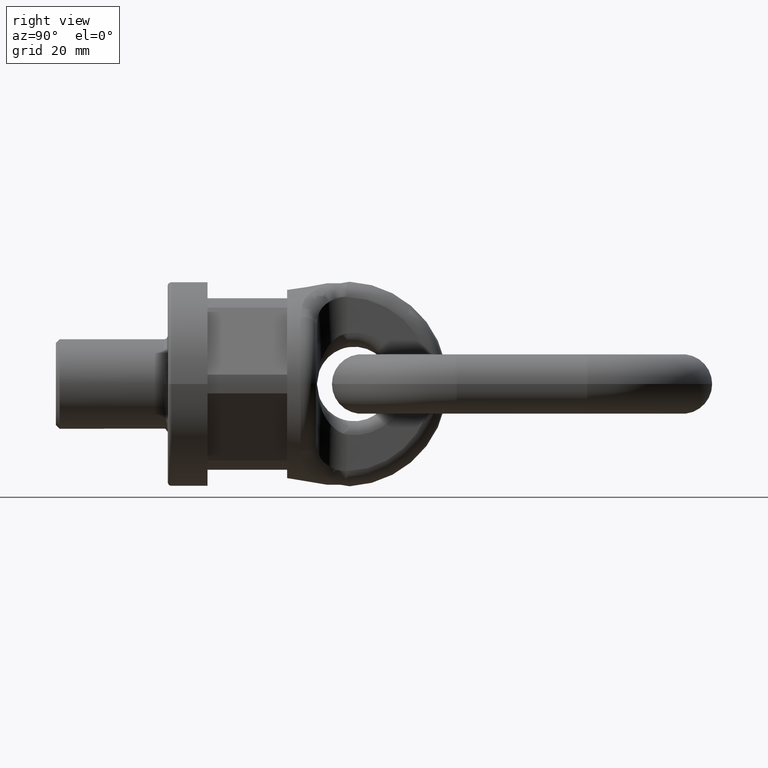
[diagram: clean part render]
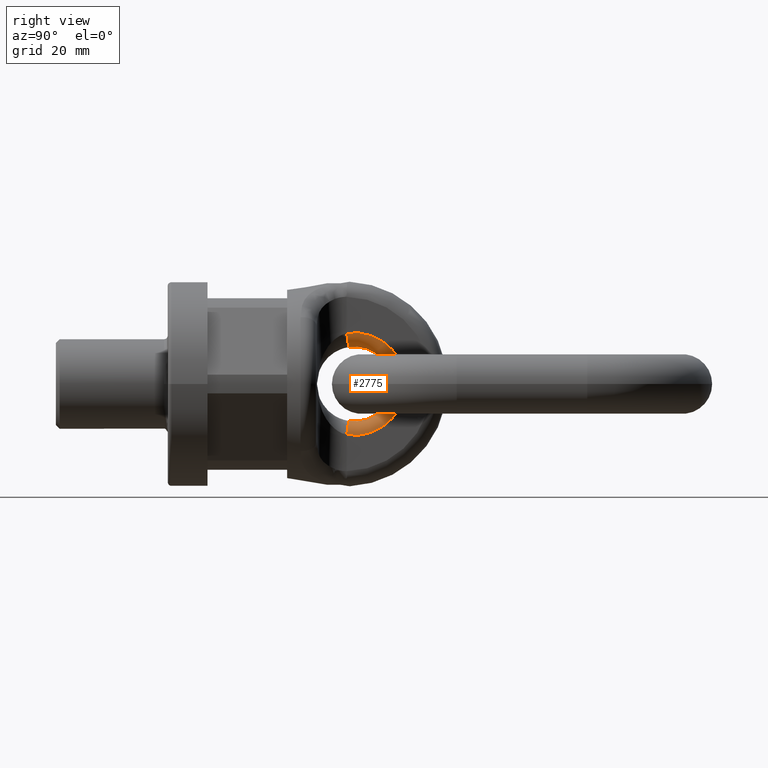
[diagram: same view with one face highlighted and labeled with its STEP entity id]
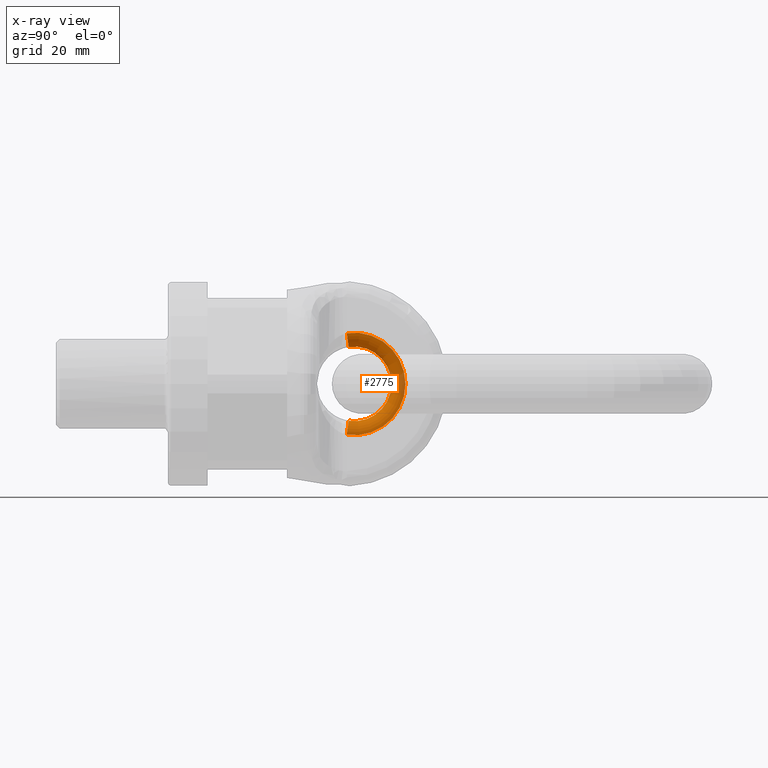
[diagram: x-ray of the same camera — body ghosted, the highlighted face saturated]
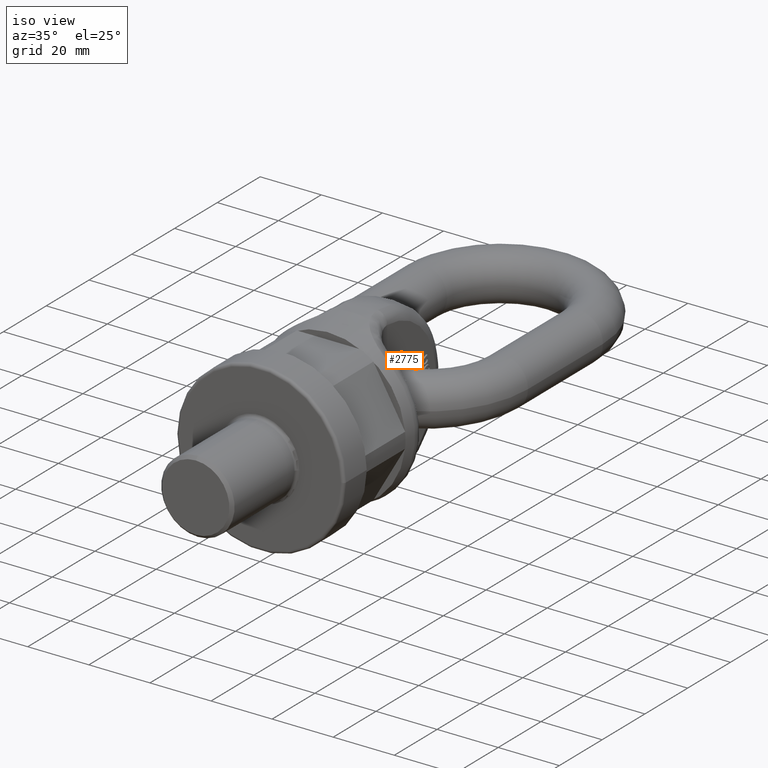
[diagram: same view with one face highlighted and labeled with its STEP entity id]
A machine part, right view. The second image highlights one B-rep face of the part: STEP entity #2775.
The next image is the same camera in x-ray: the body ghosted, the highlighted face saturated — about 14% of this face is hidden behind the body in this view.
A second angle (iso view) of the same face is appended — the face is thin or edge-on in the first view.
In plain terms, the highlighted toroidal blend (fillet) surface has major radius 13.75 mm and minor (blend) radius 3.75 mm.
Its self-contained STEP definition (entity closure, byte-faithful):
#1800=TOROIDAL_SURFACE('',#5728,13.75,3.75);
#1919=FACE_OUTER_BOUND('',#3219,.T.);
#2775=ADVANCED_FACE('',(#1919),#1800,.T.);
#3219=EDGE_LOOP('',(#3991,#3992,#3993,#3994));
#3991=ORIENTED_EDGE('',*,*,#5267,.T.);
#3992=ORIENTED_EDGE('',*,*,#5009,.F.);
#3993=ORIENTED_EDGE('',*,*,#5268,.F.);
#3994=ORIENTED_EDGE('',*,*,#5082,.F.);
#4599=VERTEX_POINT('',#6790);
#4600=VERTEX_POINT('',#6792);
#4666=VERTEX_POINT('',#7080);
#4667=VERTEX_POINT('',#7081);
#5009=EDGE_CURVE('',#4599,#4600,#5559,.T.);
#5082=EDGE_CURVE('',#4666,#4667,#5569,.T.);
#5267=EDGE_CURVE('',#4666,#4600,#5580,.T.);
#5268=EDGE_CURVE('',#4667,#4599,#5581,.T.);
#5559=CIRCLE('',#5647,13.75);
#5569=CIRCLE('',#5664,10.);
#5580=CIRCLE('',#5726,3.75);
#5581=CIRCLE('',#5727,3.75);
#5647=AXIS2_PLACEMENT_3D('',#6791,#5928,#5929);
#5664=AXIS2_PLACEMENT_3D('',#7079,#5991,#5992);
#5726=AXIS2_PLACEMENT_3D('',#8164,#6241,#6242);
#5727=AXIS2_PLACEMENT_3D('',#8195,#6243,#6244);
#5728=AXIS2_PLACEMENT_3D('',#8196,#6245,#6246);
#5928=DIRECTION('',(-1.,2.47817639425258E-16,0.));
#5929=DIRECTION('',(2.52323414687536E-16,1.,0.));
#5991=DIRECTION('',(1.,-2.47817639425258E-16,0.));
#5992=DIRECTION('',(2.60208521396521E-16,1.,0.));
#6241=DIRECTION('',(6.72862439166759E-17,0.989364935302748,-0.145454545454545));
#6242=DIRECTION('',(0.,0.145454545454545,0.989364935302749));
#6243=DIRECTION('',(-6.72862439166759E-17,-0.989364935302748,-0.145454545454545));
#6244=DIRECTION('',(0.,0.145454545454545,-0.989364935302749));
#6245=DIRECTION('',(1.,-2.47817639425258E-16,0.));
#6246=DIRECTION('',(2.47817639425258E-16,1.,0.));
#6790=CARTESIAN_POINT('',(8.,48.,13.6037678604128));
#6791=CARTESIAN_POINT('',(8.,50.,0.));
#6792=CARTESIAN_POINT('',(8.,48.,-13.6037678604128));
#7079=CARTESIAN_POINT('',(4.25,50.,0.));
#7080=CARTESIAN_POINT('',(4.25,48.5454545454545,-9.89364935302748));
#7081=CARTESIAN_POINT('',(4.25,48.5454545454545,9.89364935302748));
#8164=CARTESIAN_POINT('',(4.25,48.,-13.6037678604128));
#8195=CARTESIAN_POINT('',(4.25,48.,13.6037678604128));
#8196=CARTESIAN_POINT('',(4.25,50.,0.));